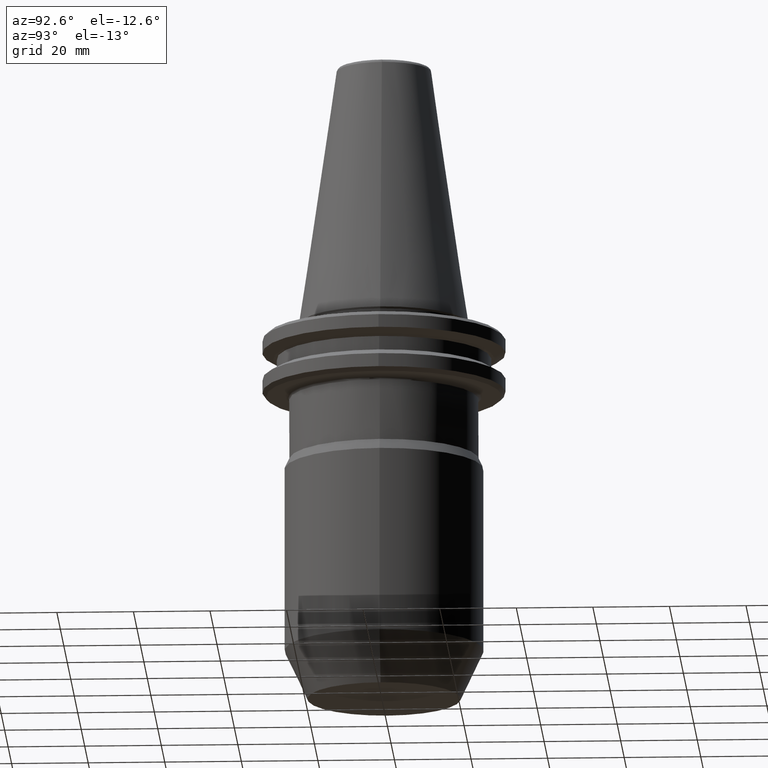
[diagram: clean part render]
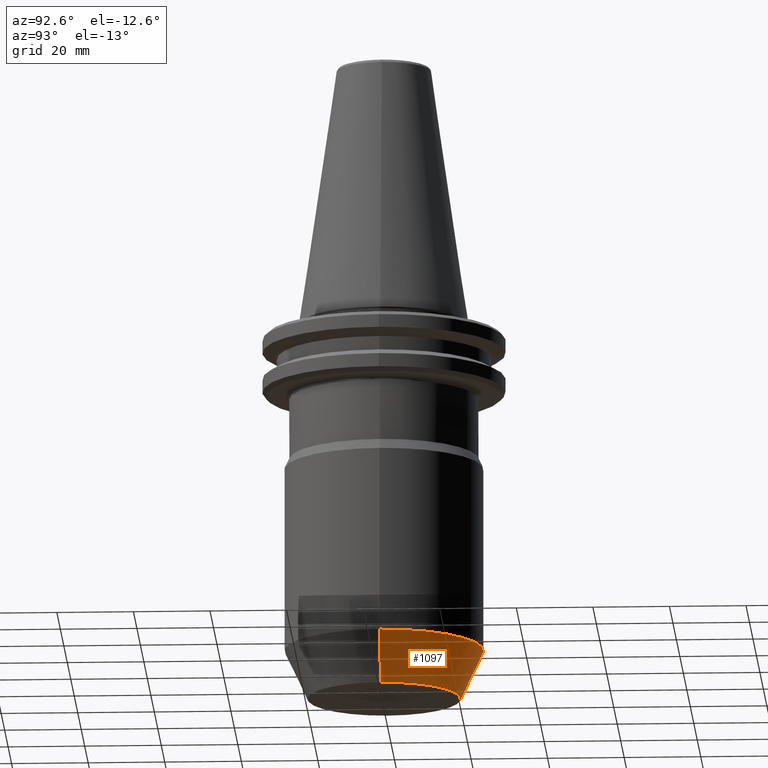
[diagram: same view with one face highlighted and labeled with its STEP entity id]
A machine part, auxiliary view. The second image highlights one B-rep face of the part: STEP entity #1097.
In plain terms, the highlighted conical surface has half-angle 25 deg.
Its self-contained STEP definition (entity closure, byte-faithful):
#67 = DIRECTION ( 'NONE',  ( 1.000000000000000000, 0.0000000000000000000, 0.0000000000000000000 ) ) ;
#70 = ORIENTED_EDGE ( 'NONE', *, *, #1408, .T. ) ;
#160 = VECTOR ( 'NONE', #1109, 1000.000000000000000 ) ;
#193 = DIRECTION ( 'NONE',  ( 0.0000000000000000000, 0.0000000000000000000, 1.000000000000000000 ) ) ;
#201 = EDGE_CURVE ( 'NONE', #763, #937, #791, .T. ) ;
#210 = CARTESIAN_POINT ( 'NONE',  ( 26.00000000000000700, 0.0000000000000000000, -87.13295847694240600 ) ) ;
#221 = AXIS2_PLACEMENT_3D ( 'NONE', #624, #1517, #752 ) ;
#301 = EDGE_CURVE ( 'NONE', #827, #1399, #491, .T. ) ;
#327 = CONICAL_SURFACE ( 'NONE', #569, 26.00000000000000700, 0.4363323129985748300 ) ;
#432 = ORIENTED_EDGE ( 'NONE', *, *, #201, .F. ) ;
#435 = EDGE_LOOP ( 'NONE', ( #70, #540, #1483, #432 ) ) ;
#437 = CARTESIAN_POINT ( 'NONE',  ( 0.0000000000000000000, 0.0000000000000000000, -87.13295847694240600 ) ) ;
#485 = DIRECTION ( 'NONE',  ( -0.4226182617406926100, 5.175581015019575600E-017, 0.9063077870366531600 ) ) ;
#491 = LINE ( 'NONE', #1616, #909 ) ;
#540 = ORIENTED_EDGE ( 'NONE', *, *, #301, .T. ) ;
#569 = AXIS2_PLACEMENT_3D ( 'NONE', #1449, #692, #1572 ) ;
#601 = CARTESIAN_POINT ( 'NONE',  ( -20.00000000000001100, 2.816687638038913500E-015, -100.0000000000000000 ) ) ;
#617 = CARTESIAN_POINT ( 'NONE',  ( 26.00000000000000700, 0.0000000000000000000, -87.13295847694240600 ) ) ;
#624 = CARTESIAN_POINT ( 'NONE',  ( 0.0000000000000000000, 0.0000000000000000000, -100.0000000000000000 ) ) ;
#692 = DIRECTION ( 'NONE',  ( 0.0000000000000000000, 0.0000000000000000000, 1.000000000000000000 ) ) ;
#728 = CARTESIAN_POINT ( 'NONE',  ( 20.00000000000001100, 0.0000000000000000000, -100.0000000000000000 ) ) ;
#752 = DIRECTION ( 'NONE',  ( 1.000000000000000000, 0.0000000000000000000, 0.0000000000000000000 ) ) ;
#763 = VERTEX_POINT ( 'NONE', #728 ) ;
#791 = LINE ( 'NONE', #210, #160 ) ;
#827 = VERTEX_POINT ( 'NONE', #601 ) ;
#909 = VECTOR ( 'NONE', #485, 1000.000000000000000 ) ;
#937 = VERTEX_POINT ( 'NONE', #617 ) ;
#995 = AXIS2_PLACEMENT_3D ( 'NONE', #437, #193, #67 ) ;
#999 = EDGE_CURVE ( 'NONE', #937, #1399, #1210, .T. ) ;
#1048 = FACE_OUTER_BOUND ( 'NONE', #435, .T. ) ;
#1097 = ADVANCED_FACE ( 'NONE', ( #1048 ), #327, .T. ) ;
#1109 = DIRECTION ( 'NONE',  ( 0.4226182617406926100, 0.0000000000000000000, 0.9063077870366531600 ) ) ;
#1210 = CIRCLE ( 'NONE', #995, 26.00000000000000700 ) ;
#1366 = CIRCLE ( 'NONE', #221, 20.00000000000001100 ) ;
#1383 = CARTESIAN_POINT ( 'NONE',  ( -26.00000000000000700, 3.184081677783119000E-015, -87.13295847694240600 ) ) ;
#1399 = VERTEX_POINT ( 'NONE', #1383 ) ;
#1408 = EDGE_CURVE ( 'NONE', #763, #827, #1366, .T. ) ;
#1449 = CARTESIAN_POINT ( 'NONE',  ( 0.0000000000000000000, 0.0000000000000000000, -87.13295847694240600 ) ) ;
#1483 = ORIENTED_EDGE ( 'NONE', *, *, #999, .F. ) ;
#1517 = DIRECTION ( 'NONE',  ( 0.0000000000000000000, 0.0000000000000000000, 1.000000000000000000 ) ) ;
#1572 = DIRECTION ( 'NONE',  ( 1.000000000000000000, 0.0000000000000000000, 0.0000000000000000000 ) ) ;
#1616 = CARTESIAN_POINT ( 'NONE',  ( -26.00000000000000700, 3.184081677783119000E-015, -87.13295847694240600 ) ) ;